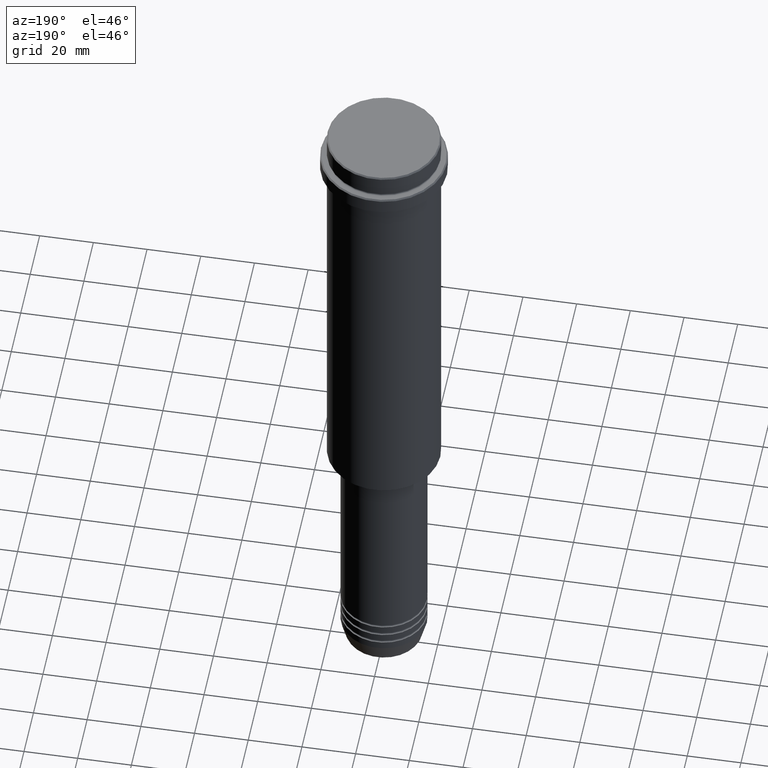
[diagram: clean part render]
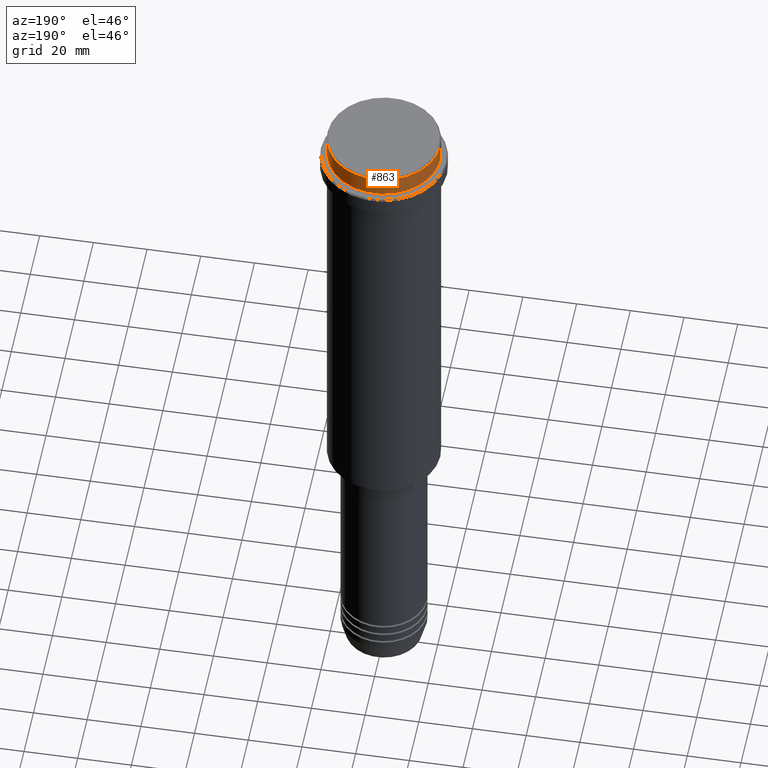
[diagram: same view with one face highlighted and labeled with its STEP entity id]
A machine part, auxiliary view. The second image highlights one B-rep face of the part: STEP entity #863.
In plain terms, the highlighted cylindrical surface (partial cylindrical patch) has radius 21 mm, axis along (-0, -0, 1).
Its self-contained STEP definition (entity closure, byte-faithful):
#1 = DIRECTION ( 'NONE',  ( -0.000000000000000000, -0.000000000000000000, 1.000000000000000000 ) ) ;
#106 = DIRECTION ( 'NONE',  ( 0.000000000000000000, 0.000000000000000000, -1.000000000000000000 ) ) ;
#112 = DIRECTION ( 'NONE',  ( 1.000000000000000000, 0.000000000000000000, 0.000000000000000000 ) ) ;
#132 = EDGE_CURVE ( 'NONE', #157, #678, #1373, .T. ) ;
#157 = VERTEX_POINT ( 'NONE', #430 ) ;
#170 = CARTESIAN_POINT ( 'NONE',  ( -20.99999999999999645, 2.571758278209441267E-15, -7.999999999999998224 ) ) ;
#243 = CARTESIAN_POINT ( 'NONE',  ( 20.99999999999999645, 0.000000000000000000, -0.4999999999999241163 ) ) ;
#282 = ORIENTED_EDGE ( 'NONE', *, *, #959, .T. ) ;
#406 = DIRECTION ( 'NONE',  ( 1.000000000000000000, 0.000000000000000000, 0.000000000000000000 ) ) ;
#410 = CARTESIAN_POINT ( 'NONE',  ( 20.99999999999999645, 0.000000000000000000, 0.000000000000000000 ) ) ;
#424 = FACE_OUTER_BOUND ( 'NONE', #587, .T. ) ;
#430 = CARTESIAN_POINT ( 'NONE',  ( 20.99999999999999645, 0.000000000000000000, -7.999999999999998224 ) ) ;
#474 = CARTESIAN_POINT ( 'NONE',  ( -20.99999999999999645, 2.571758278209441267E-15, -0.4999999999999241163 ) ) ;
#545 = AXIS2_PLACEMENT_3D ( 'NONE', #654, #1078, #112 ) ;
#556 = EDGE_CURVE ( 'NONE', #1004, #1069, #680, .T. ) ;
#587 = EDGE_LOOP ( 'NONE', ( #724, #817, #282, #1021 ) ) ;
#596 = EDGE_CURVE ( 'NONE', #157, #1004, #955, .T. ) ;
#616 = VECTOR ( 'NONE', #1402, 1000.000000000000000 ) ;
#654 = CARTESIAN_POINT ( 'NONE',  ( 0.000000000000000000, 0.000000000000000000, -7.999999999999998224 ) ) ;
#678 = VERTEX_POINT ( 'NONE', #243 ) ;
#680 = LINE ( 'NONE', #1090, #909 ) ;
#724 = ORIENTED_EDGE ( 'NONE', *, *, #596, .T. ) ;
#750 = CYLINDRICAL_SURFACE ( 'NONE', #957, 20.99999999999999645 ) ;
#817 = ORIENTED_EDGE ( 'NONE', *, *, #556, .T. ) ;
#861 = DIRECTION ( 'NONE',  ( -0.000000000000000000, -0.000000000000000000, 1.000000000000000000 ) ) ;
#863 = ADVANCED_FACE ( 'NONE', ( #424 ), #750, .T. ) ;
#909 = VECTOR ( 'NONE', #1, 1000.000000000000000 ) ;
#955 = CIRCLE ( 'NONE', #545, 20.99999999999999645 ) ;
#957 = AXIS2_PLACEMENT_3D ( 'NONE', #1172, #861, #1284 ) ;
#959 = EDGE_CURVE ( 'NONE', #1069, #678, #1195, .T. ) ;
#1004 = VERTEX_POINT ( 'NONE', #170 ) ;
#1021 = ORIENTED_EDGE ( 'NONE', *, *, #132, .F. ) ;
#1061 = CARTESIAN_POINT ( 'NONE',  ( 0.000000000000000000, 0.000000000000000000, -0.4999999999999241163 ) ) ;
#1069 = VERTEX_POINT ( 'NONE', #474 ) ;
#1078 = DIRECTION ( 'NONE',  ( -0.000000000000000000, -0.000000000000000000, 1.000000000000000000 ) ) ;
#1090 = CARTESIAN_POINT ( 'NONE',  ( -20.99999999999999645, 2.571758278209441267E-15, 0.000000000000000000 ) ) ;
#1172 = CARTESIAN_POINT ( 'NONE',  ( 0.000000000000000000, 0.000000000000000000, 0.000000000000000000 ) ) ;
#1195 = CIRCLE ( 'NONE', #1241, 20.99999999999999645 ) ;
#1241 = AXIS2_PLACEMENT_3D ( 'NONE', #1061, #106, #406 ) ;
#1284 = DIRECTION ( 'NONE',  ( 1.000000000000000000, 0.000000000000000000, 0.000000000000000000 ) ) ;
#1373 = LINE ( 'NONE', #410, #616 ) ;
#1402 = DIRECTION ( 'NONE',  ( -0.000000000000000000, -0.000000000000000000, 1.000000000000000000 ) ) ;